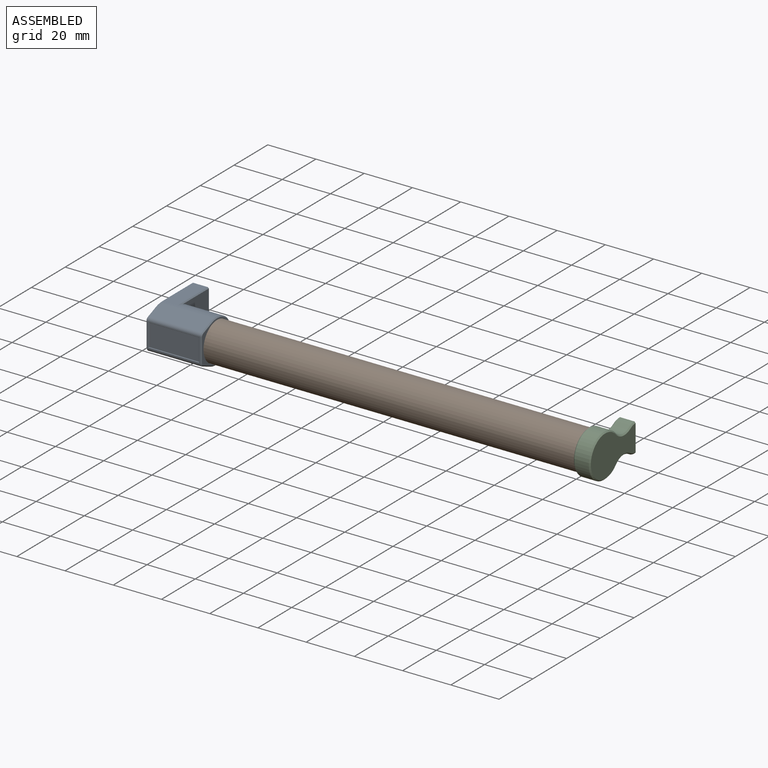
[diagram: assembled view]
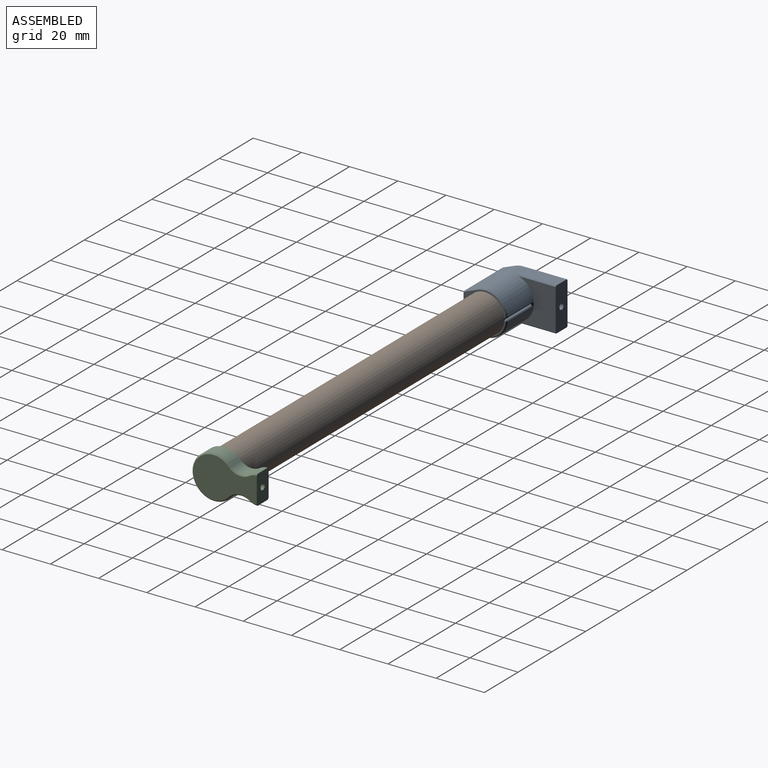
[diagram: assembled view, second angle]
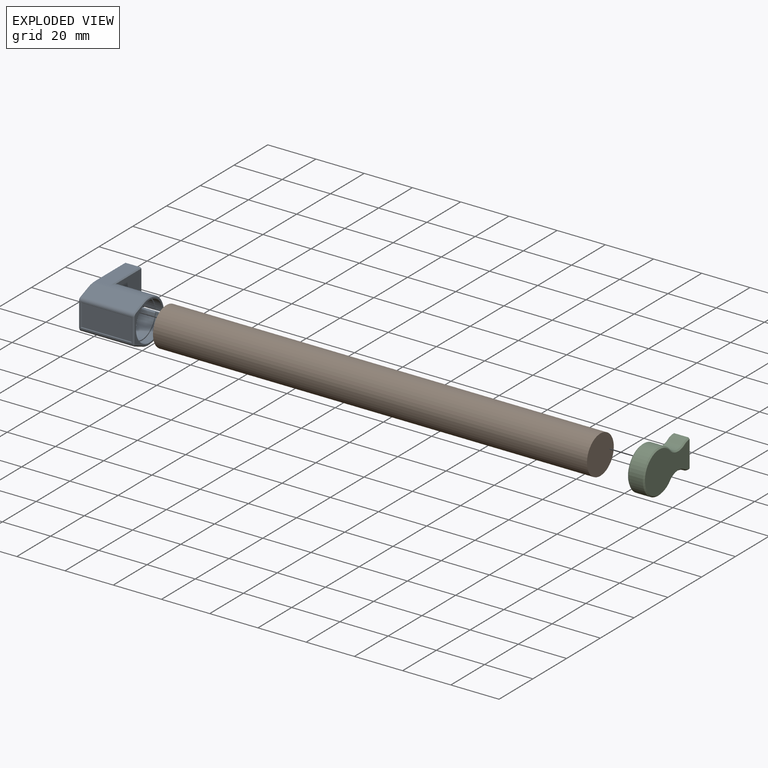
[diagram: exploded view]
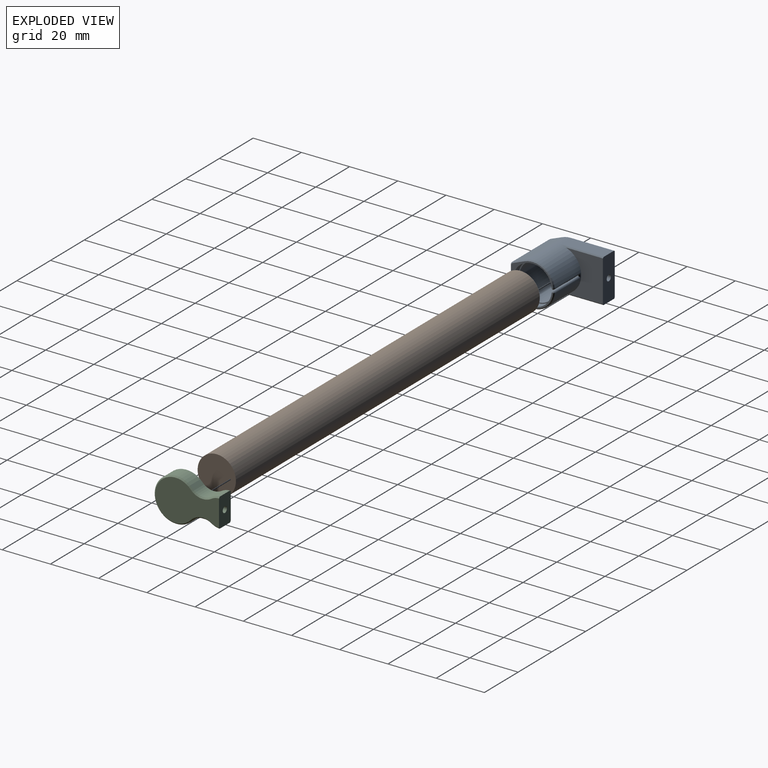
[diagram: exploded view, second angle]
ASSEMBLY  parts=3 mates=2
PART A: 52 faces, bbox 23.2x18.2x27.5 mm
  f0: plane 22.2x10mm, normal (0,0,1), area 22.5mm2, adj f8,f9,f32,f41,f48,f49,f50,f51
  f1: plane 17.42x17.23mm, normal (1,0,0), area 46.1mm2, adj f2,f37,f38,f39,f40,f41,f42,f43
  f2: cylinder r=8mm len=16mm, axis (-1,0,0), area 148.8mm2, adj f1,f16,f17,f18,f37,f45
  f3: cylinder r=9.02mm len=22.2mm, axis (-1,0,0), area 562.5mm2, adj f4,f6,f7,f10,f11,f17,f18,f19
  f4: plane 17.23x15.36mm, normal (1,0,0), area 184.2mm2, adj f3,f12,f46,f47
  f5: cylinder r=7.6mm len=18mm, axis (1,0,0), area 832.3mm2, adj f14,f15,f16,f17,f18,f20
  f6: plane 18.02x6.2mm, normal (0,1,0), area 111.7mm2, adj f3,f12,f28,f46
  f7: plane 22.2x4.99mm, normal (0,0.93,0.37), area 119.2mm2, adj f3,f8,f30,f39
  f8: cylinder r=1.5mm len=22.2mm, axis (-1,0,0), area 39.7mm2, adj f0,f7,f31,f40
  f9: cylinder r=1.5mm len=22.2mm, axis (-1,0,0), area 39.7mm2, adj f0,f10,f33,f42
  f10: plane 22.2x4.99mm, normal (0,-0.93,0.37), area 119.2mm2, adj f3,f9,f34,f43
  f11: plane 18.02x6.2mm, normal (0,-1,0), area 111.7mm2, adj f3,f12,f36,f47
  f12: plane 18.03x7mm, normal (0,0,-1), area 121mm2, adj f4,f6,f11,f13,f15,f28,f36,f46
  f13: plane 26.88x17.23mm, normal (-1,0,0), area 441.9mm2, adj f12,f28,f29,f30,f31,f32,f33,f34
  f14: plane 15.2x15.2mm, normal (1,0,0), area 181.5mm2, adj f5
  f15: cylinder r=1.25mm len=10.42mm, axis (0,0,-1), area 81.8mm2, adj f5,f12
  f16: plane 16x15.99mm, normal (1,0,0), area 19.2mm2, adj f2,f5,f17,f18
  f17: cylinder r=0.71mm len=15.3mm, axis (1,0,0), area 30.6mm2, adj f2,f3,f5,f16,f22,f24,f26,f37
  f18: cylinder r=0.71mm len=15.3mm, axis (1,0,0), area 30.6mm2, adj f2,f3,f5,f16,f21,f23,f25,f45
  f19: torus R=8.31mm, axis (1,0,0), area 1mm2, adj f3,f21,f22
  f20: torus R=8.3mm, axis (1,0,0), area 0.7mm2, adj f5,f25,f26
  f21: bspline ~1.09x1mm, area 0.4mm2, adj f18,f19,f22,f23
  f22: bspline ~1.09x1mm, area 0.4mm2, adj f17,f19,f21,f24
  f23: torus R=1.01mm, axis (1,0,0), area 0mm2, adj f18,f21,f24,f25
  f24: torus R=1.01mm, axis (1,0,0), area 0mm2, adj f17,f22,f23,f26
  f25: bspline ~1x0.93mm, area 0.3mm2, adj f18,f20,f23,f26
  f26: bspline ~1x0.93mm, area 0.4mm2, adj f17,f20,f24,f25
  f27: plane 20.5x9mm, normal (0,0,1), area 184.5mm2, adj f48,f49,f50,f51
  f28: plane 18.02x0.4mm, normal (-0.71,0.71,0), area 10.2mm2, adj f6,f12,f13,f29
  f29: cone r=9.02mm half-angle=45deg, axis (1,0,0), area 1.9mm2, adj f3,f13,f28,f30
  f30: plane 5.14x2.36mm, normal (-0.71,0.66,0.26), area 3mm2, adj f7,f13,f29,f31
  f31: cone r=1.5mm half-angle=45deg, axis (1,0,0), area 0.9mm2, adj f8,f13,f30,f32
  f32: plane 10x0.4mm, normal (-0.71,0,0.71), area 5.7mm2, adj f0,f13,f31,f33
  f33: cone r=1.5mm half-angle=45deg, axis (1,0,0), area 0.9mm2, adj f9,f13,f32,f34
  f34: plane 5.14x2.36mm, normal (-0.71,-0.66,0.26), area 3mm2, adj f10,f13,f33,f35
  f35: cone r=9.02mm half-angle=45deg, axis (1,0,0), area 1.9mm2, adj f3,f13,f34,f36
  f36: plane 18.02x0.4mm, normal (-0.71,-0.71,0), area 10.2mm2, adj f11,f12,f13,f35
  f37: cone r=0.31mm half-angle=45deg, axis (-1,0,0), area 0.7mm2, adj f1,f2,f17,f38
  f38: cone r=9.02mm half-angle=45deg, axis (-1,0,0), area 9.1mm2, adj f1,f3,f37,f39
  f39: plane 5.14x2.36mm, normal (0.71,0.66,0.26), area 3mm2, adj f1,f7,f38,f40
  f40: cone r=1.5mm half-angle=45deg, axis (-1,0,0), area 0.9mm2, adj f1,f8,f39,f41
  f41: plane 10x0.4mm, normal (0.71,0,0.71), area 5.7mm2, adj f0,f1,f40,f42
  f42: cone r=1.5mm half-angle=45deg, axis (-1,0,0), area 0.9mm2, adj f1,f9,f41,f43
  f43: plane 5.14x2.36mm, normal (0.71,-0.66,0.26), area 3mm2, adj f1,f10,f42,f44
  f44: cone r=9.02mm half-angle=45deg, axis (-1,0,0), area 9.1mm2, adj f1,f3,f43,f45
  f45: cone r=0.71mm half-angle=45deg, axis (-1,0,0), area 0.7mm2, adj f1,f2,f18,f44
  f46: plane 18.21x0.6mm, normal (0.71,0.71,0), area 9.2mm2, adj f3,f4,f6,f12
  f47: plane 18.21x0.6mm, normal (0.71,-0.71,0), area 9.2mm2, adj f3,f4,f11,f12
  f48: cylinder r=0.25mm len=21mm, axis (-1,0,0), area 8.1mm2, adj f0,f27,f49,f50
  f49: cylinder r=0.25mm len=9.5mm, axis (0,-1,0), area 3.6mm2, adj f0,f27,f48,f51
  f50: cylinder r=0.25mm len=9.5mm, axis (0,1,0), area 3.6mm2, adj f0,f27,f48,f51
  f51: cylinder r=0.25mm len=21mm, axis (1,0,0), area 8.1mm2, adj f0,f27,f49,f50
PART B: 3 faces, bbox 180x15.9x15.9 mm
  f0: plane 15.9x15.9mm, normal (1,0,0), area 198.6mm2, adj f1
  f1: cylinder r=7.95mm len=180mm, axis (1,0,0), area 8991.2mm2, adj f0,f2
  f2: plane 15.9x15.9mm, normal (-1,0,0), area 198.6mm2, adj f1
PART C: 21 faces, bbox 7x18x27 mm
  f0: cylinder r=8mm len=16mm, axis (1,0,0), area 246.4mm2, adj f7,f9,f10
  f1: cylinder r=9mm len=18mm, axis (-1,0,0), area 259.7mm2, adj f2,f6,f13,f18
  f2: cylinder r=6.25mm len=8.05mm, axis (-1,0,0), area 53mm2, adj f1,f3,f12,f17
  f3: cylinder r=6mm len=6mm, axis (-1,0,0), area 20.9mm2, adj f2,f4,f11,f16
  f4: plane 12x7mm, normal (0,0,-1), area 78.6mm2, adj f3,f5,f7,f8,f10,f11,f15,f16
  f5: cylinder r=6mm len=6mm, axis (-1,0,0), area 20.9mm2, adj f4,f6,f15,f20
  f6: cylinder r=6.25mm len=8.05mm, axis (-1,0,0), area 53mm2, adj f1,f5,f14,f19
  f7: plane 26.5x17mm, normal (1,0,0), area 110.3mm2, adj f0,f4,f16,f17,f18,f19,f20
  f8: plane 26.5x17mm, normal (-1,0,0), area 311.4mm2, adj f4,f11,f12,f13,f14,f15
  f9: plane 16x16mm, normal (1,0,0), area 201.1mm2, adj f0
  f10: cylinder r=1.25mm len=10.1mm, axis (0,0,-1), area 78.9mm2, adj f0,f4
  f11: cone r=6mm half-angle=45deg, axis (1,0,0), area 2.4mm2, adj f3,f4,f8,f12
  f12: cone r=6.75mm half-angle=45deg, axis (-1,0,0), area 6.5mm2, adj f2,f8,f11,f13
  f13: cone r=9mm half-angle=45deg, axis (1,0,0), area 29.8mm2, adj f1,f8,f12,f14
  f14: cone r=6.75mm half-angle=45deg, axis (-1,0,0), area 6.5mm2, adj f6,f8,f13,f15
  f15: cone r=5.5mm half-angle=45deg, axis (1,0,0), area 2.4mm2, adj f4,f5,f8,f14
  f16: cone r=5.5mm half-angle=45deg, axis (-1,0,0), area 2.4mm2, adj f3,f4,f7,f17
  f17: cone r=6.25mm half-angle=45deg, axis (1,0,0), area 6.5mm2, adj f2,f7,f16,f18
  f18: cone r=8.5mm half-angle=45deg, axis (-1,0,0), area 29.8mm2, adj f1,f7,f17,f19
  f19: cone r=6.25mm half-angle=45deg, axis (1,0,0), area 6.5mm2, adj f6,f7,f18,f20
  f20: cone r=6mm half-angle=45deg, axis (-1,0,0), area 2.4mm2, adj f4,f5,f7,f19
PLACE A rot(axis=(1,0,0),90deg) t=(-88.5,0,0)mm
PLACE B at identity fixed
PLACE C rot(axis=(0,-0.71,0.71),180deg) t=(88.5,0,0)mm
MATE revolute A.f5 <-> B.f1  axis (1,0,0) through (-90,0,0)mm
MATE fastened B.f1 <-> C.f0  axis (1,0,0) through (90,0,0)mm
